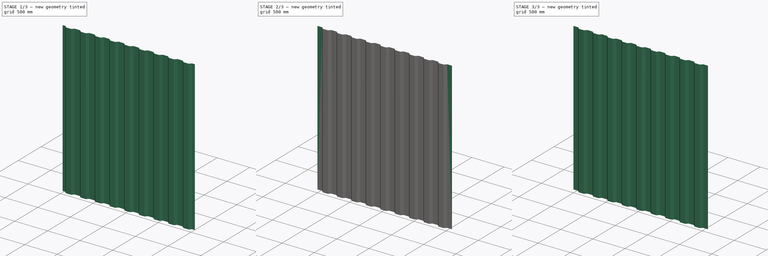
[diagram: build sequence overview — one tinted view per stage of 3, left to right]
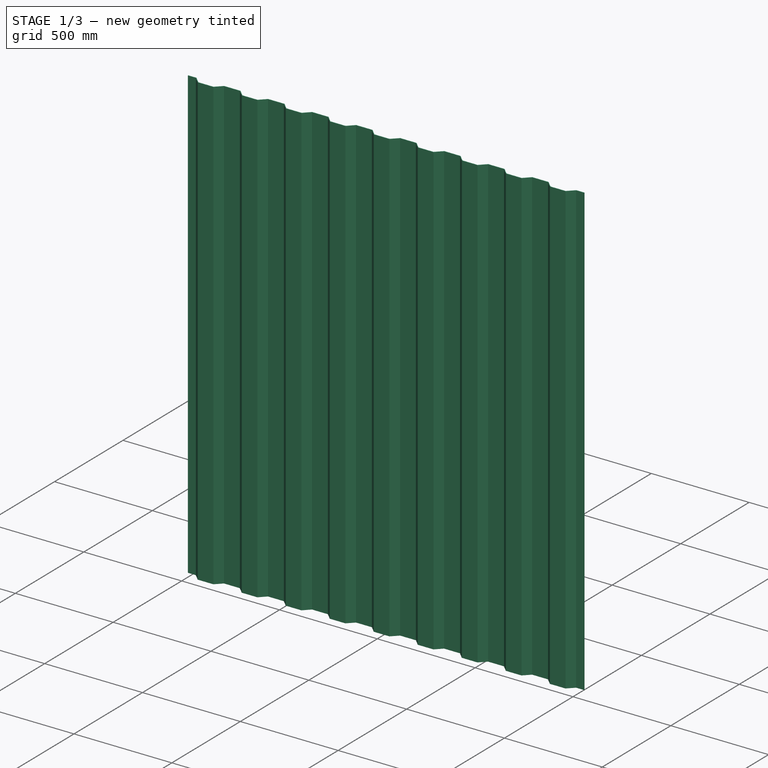
[diagram: stage 1 of 3 — iso view after this stage's code; geometry added in this stage tinted green]
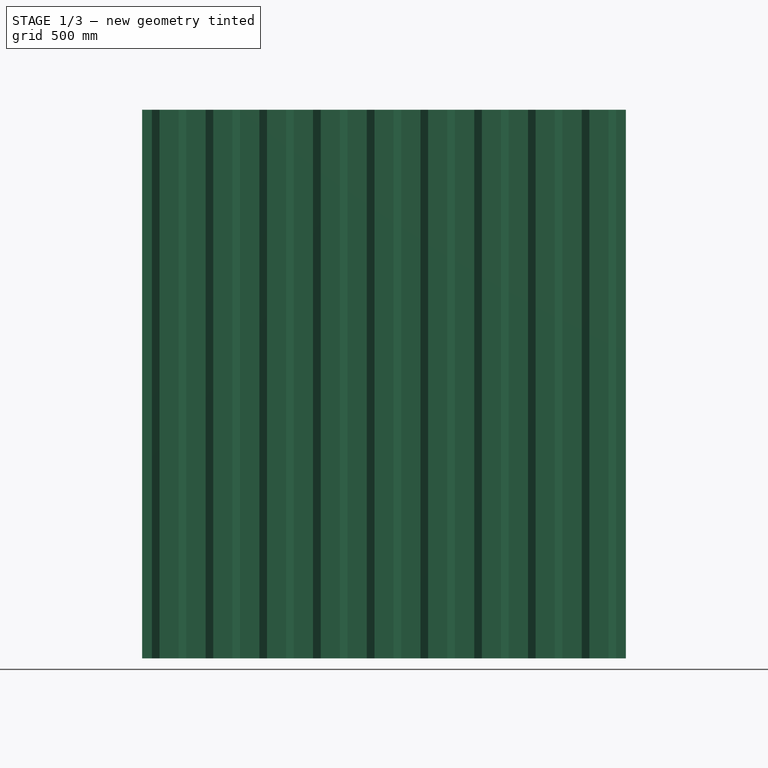
[diagram: stage 1 of 3 — front view after this stage's code; geometry added in this stage tinted green]
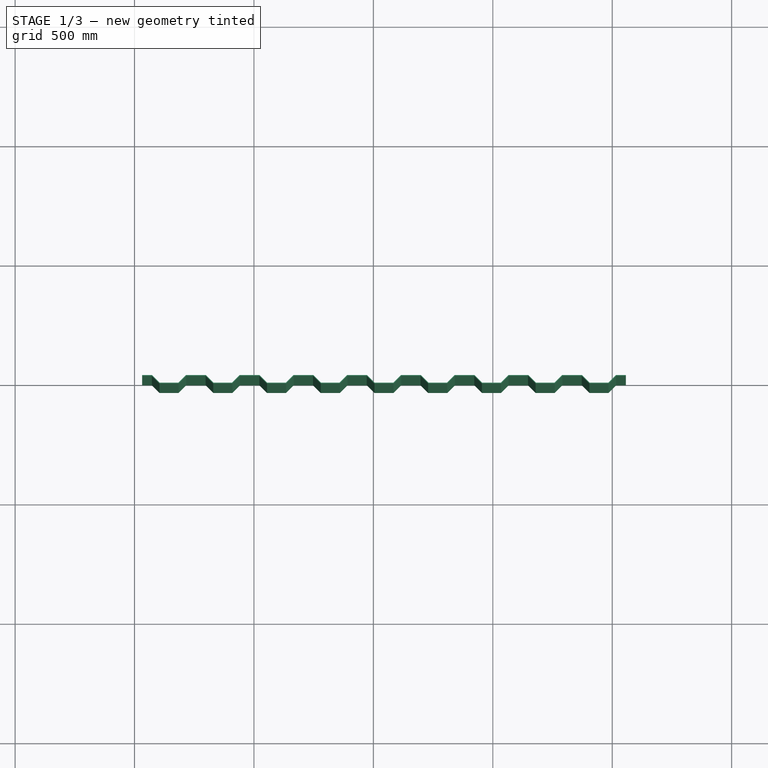
[diagram: stage 1 of 3 — top view after this stage's code; geometry added in this stage tinted green]
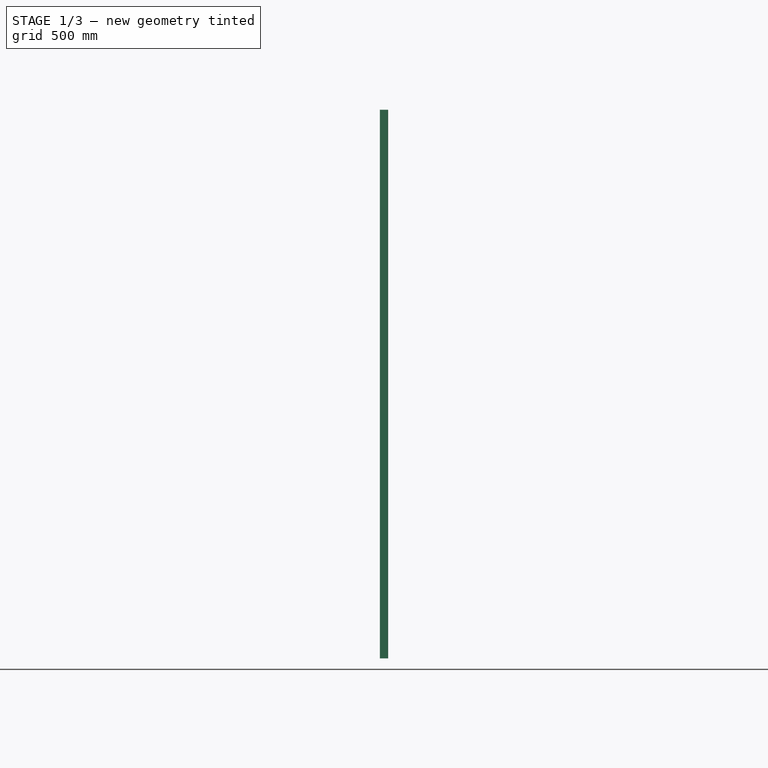
[diagram: stage 1 of 3 — right view after this stage's code; geometry added in this stage tinted green]
FCSTD DOCUMENT  (FreeCAD 0.18R4 (GitTag))
Label: wall_back
License: All rights reserved
LicenseURL: http://en.wikipedia.org/wiki/All_rights_reserved
objects: Sketcher::SketchObject×2, PartDesign::Pad×2, PartDesign::Fillet×2, PartDesign::LinearPattern×1, PartDesign::Body×1
note: 10 computed .brp shape members not serialized (recipe doc carries the construction recipe); baked Part::Feature solids carry a one-line shape summary decoded from their .brp

FEATURE [Sketcher::SketchObject] Sketch
  MapMode = 5
  Support = -> [XY_Plane]
  sketch-geometry (12):
    g0: LineSegment StartX=32 StartY=0 StartZ=0 EndX=72.5 EndY=0 EndZ=0
    g1: LineSegment StartX=72.5 StartY=0 StartZ=0 EndX=104.5 EndY=-32 EndZ=0
    g2: LineSegment StartX=104.5 StartY=-32 StartZ=0 EndX=184.5 EndY=-32 EndZ=0
    g3: LineSegment StartX=184.5 StartY=-32 StartZ=0 EndX=216.5 EndY=0 EndZ=0
    g4: LineSegment StartX=216.5 StartY=0 StartZ=0 EndX=257 EndY=0 EndZ=0
    g5: LineSegment StartX=32 StartY=3 StartZ=0 EndX=73.7426 EndY=3 EndZ=0
    g6: LineSegment StartX=73.7426 StartY=3 StartZ=0 EndX=105.743 EndY=-29 EndZ=0
    g7: LineSegment StartX=105.743 StartY=-29 StartZ=0 EndX=183.257 EndY=-29 EndZ=0
    g8: LineSegment StartX=183.257 StartY=-29 StartZ=0 EndX=215.257 EndY=3 EndZ=0
    g9: LineSegment StartX=215.257 StartY=3 StartZ=0 EndX=257 EndY=3 EndZ=0
    g10: LineSegment StartX=257 StartY=0 StartZ=0 EndX=257 EndY=3 EndZ=0
    g11: LineSegment StartX=32 StartY=0 StartZ=0 EndX=32 EndY=3 EndZ=0
  constraints (36):
    c: Horizontal(g0)
    c: Coincident(g1,g0)
    c: Coincident(g2,g1)
    c: Horizontal(g2)
    c: Coincident(g3,g2)
    c: PointOnObject(g3,g-1)
    c: Coincident(g4,g3)
    c: Horizontal(g4)
    c: Angle(g0,g1) = 2.35619
    c: Angle(g3,g4) = 2.35619
    c: DistanceX(g4,g4) = 40.5
    c: DistanceX(g2,g2) = 80
    c: DistanceY(g2,g4) = 32
    c: DistanceX(g0,g0) = 40.5
    c: PointOnObject(g0,g-1)
    c: DistanceX(g-1,g0) = 72.5
    c: Horizontal(g5)
    c: Coincident(g6,g5)
    c: Coincident(g7,g6)
    c: Horizontal(g7)
    c: Coincident(g8,g7)
    c: Coincident(g9,g8)
    c: Horizontal(g9)
    c: Coincident(g10,g4)
    c: Vertical(g10)
    c: Coincident(g9,g10)
    c: Coincident(g11,g0)
    c: Vertical(g11)
    c: Coincident(g5,g11)
    c: DistanceY(g10,g10) = 3
    c: Parallel(g8,g3)
    c: Parallel(g6,g1)
    c: Distance(g5,g1) = 3
    c: Distance(g3,g8) = 3
    c: Distance(g6,g2) = 3
    c: Equal(g11,g10)
FEATURE [PartDesign::Pad] Pad
  Length = 2297
  Length2 = 100
  Profile = -> Sketch
  Refine = true
  Type = 0
FEATURE [PartDesign::LinearPattern] LinearPattern
  BaseFeature = -> Pad
  Direction = -> X_Axis
  Length = 1800
  Occurrences = 9
  Originals = -> [Pad]
  Refine = true
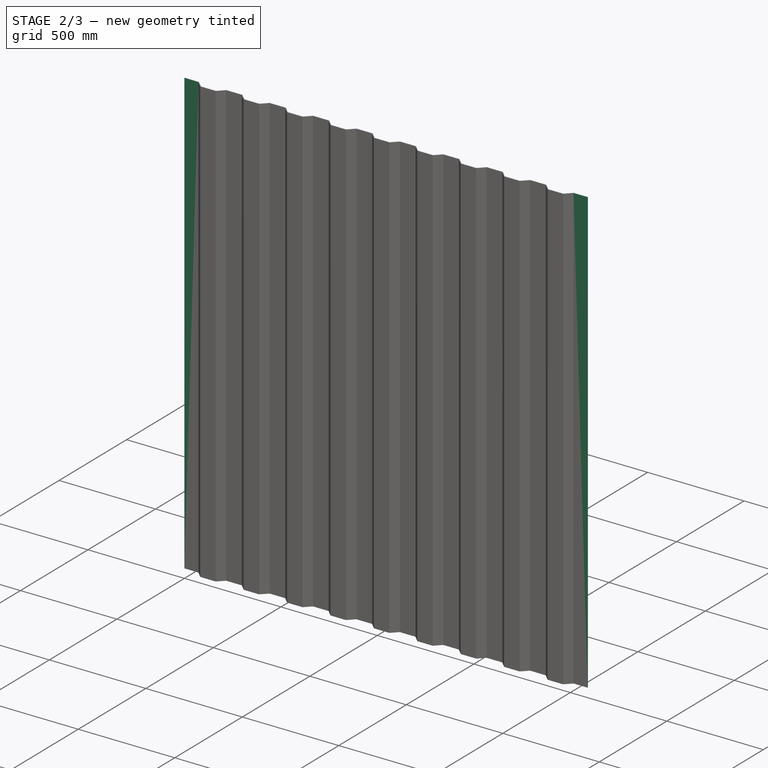
[diagram: stage 2 of 3 — iso view after this stage's code; geometry added in this stage tinted green]
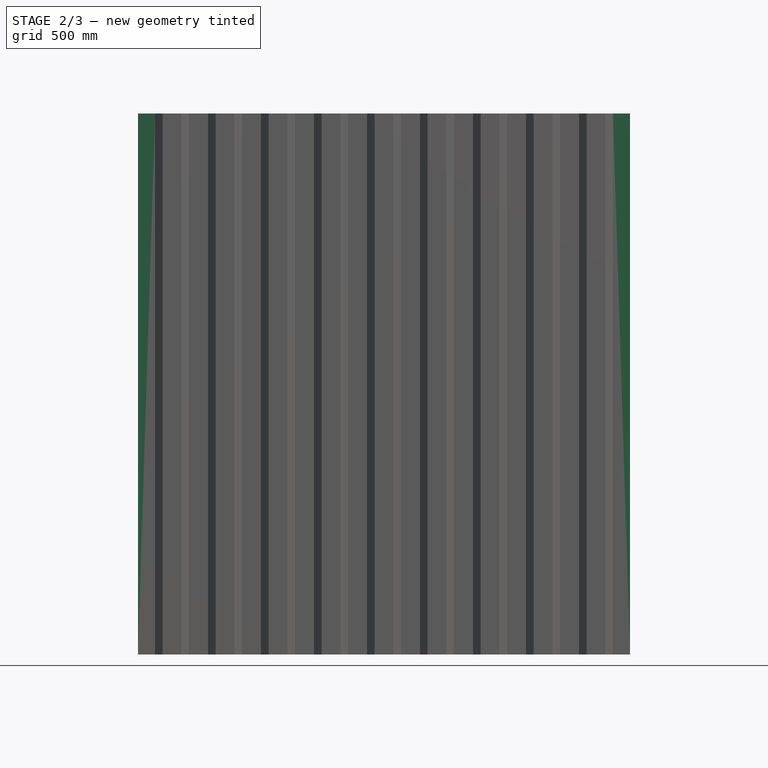
[diagram: stage 2 of 3 — front view after this stage's code; geometry added in this stage tinted green]
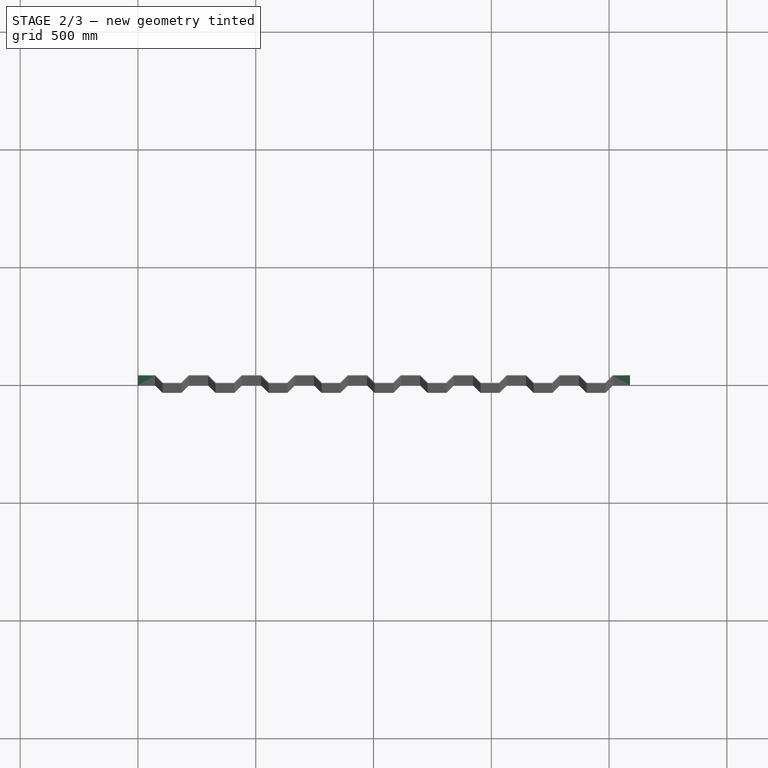
[diagram: stage 2 of 3 — top view after this stage's code; geometry added in this stage tinted green]
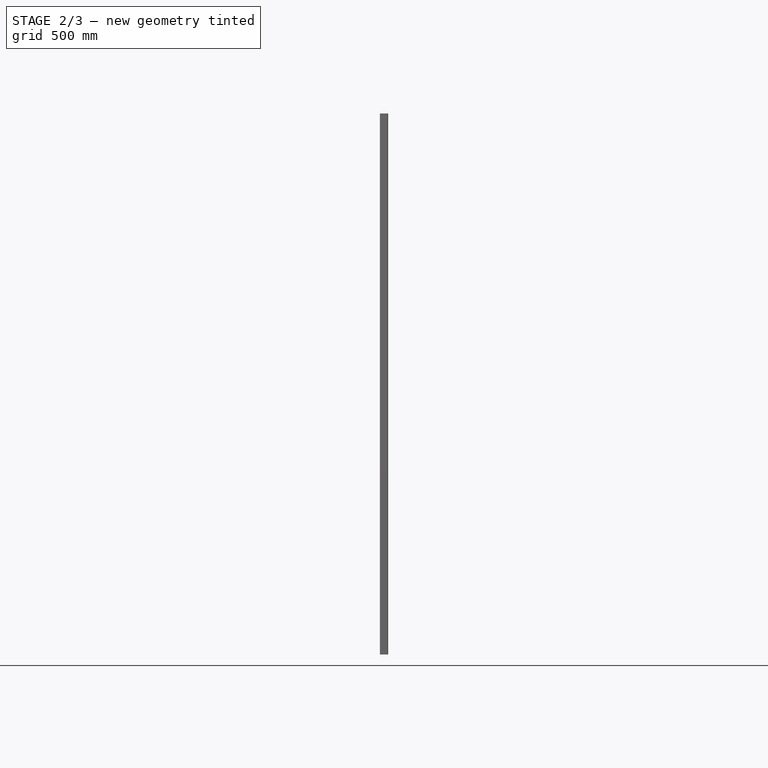
[diagram: stage 2 of 3 — right view after this stage's code; geometry added in this stage tinted green]
FEATURE [Sketcher::SketchObject] Sketch001
  ExternalGeometry = -> [LinearPattern]
  MapMode = 5
  Placement = pos=(0,0,2297) rot=(0,0,1;0rad)
  Support = -> [LinearPattern]
  sketch-geometry (8):
    g0: LineSegment StartX=72.5 StartY=0 StartZ=0 EndX=0 EndY=0 EndZ=0
    g1: LineSegment StartX=0 StartY=0 StartZ=0 EndX=0 EndY=3 EndZ=0
    g2: LineSegment StartX=0 StartY=3 StartZ=0 EndX=72.5 EndY=3 EndZ=0
    g3: LineSegment StartX=72.5 StartY=3 StartZ=0 EndX=72.5 EndY=0 EndZ=0
    g4: LineSegment StartX=2057 StartY=3 StartZ=0 EndX=2089 EndY=3 EndZ=0
    g5: LineSegment StartX=2089 StartY=3 StartZ=0 EndX=2089 EndY=0 EndZ=0
    g6: LineSegment StartX=2089 StartY=0 StartZ=0 EndX=2057 EndY=0 EndZ=0
    g7: LineSegment StartX=2057 StartY=0 StartZ=0 EndX=2057 EndY=3 EndZ=0
  constraints (22):
    c: Coincident(g0,g1)
    c: Coincident(g1,g2)
    c: Coincident(g2,g3)
    c: Coincident(g3,g0)
    c: Horizontal(g0)
    c: Horizontal(g2)
    c: Vertical(g1)
    c: Vertical(g3)
    c: Coincident(g0,g-4)
    c: PointOnObject(g1,g-2)
    c: PointOnObject(g-3,g2)
    c: Coincident(g4,g5)
    c: Coincident(g5,g6)
    c: Coincident(g6,g7)
    c: Coincident(g7,g4)
    c: Horizontal(g4)
    c: Horizontal(g6)
    c: Vertical(g5)
    c: Vertical(g7)
    c: Coincident(g4,g-5)
    c: PointOnObject(g6,g-6)
    c: DistanceX(g-6,g5) = 72.5
FEATURE [PartDesign::Pad] Pad001
  BaseFeature = -> LinearPattern
  Length = 2297
  Length2 = 100
  Profile = -> Sketch001
  Refine = true
  Reversed = true
  Type = 0
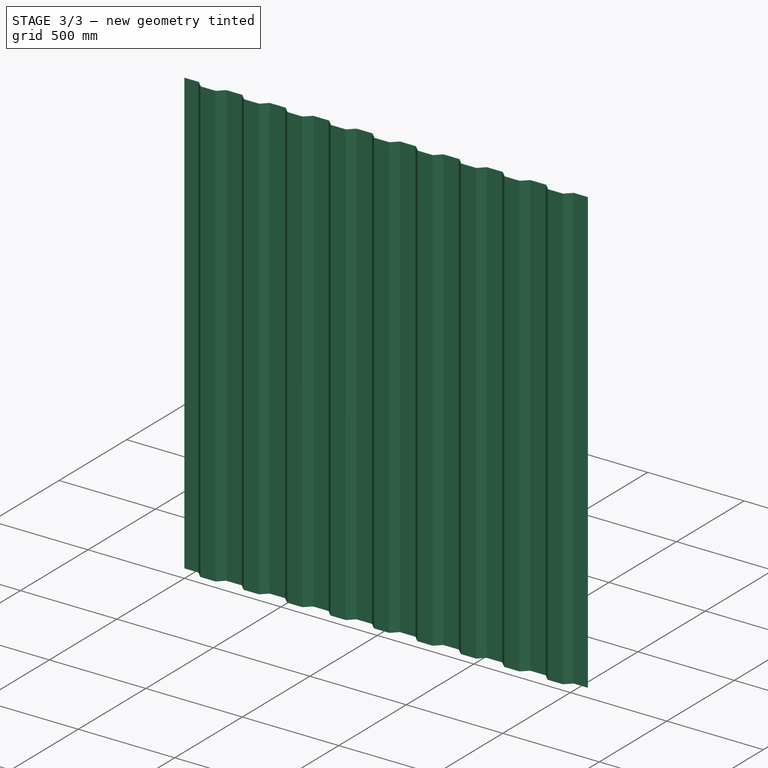
[diagram: stage 3 of 3 — iso view after this stage's code; geometry added in this stage tinted green]
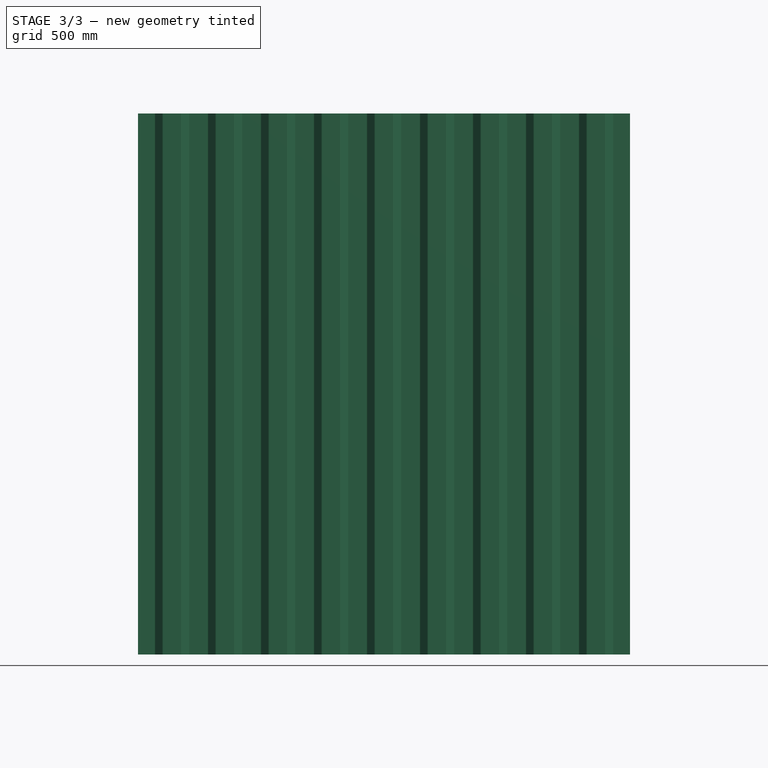
[diagram: stage 3 of 3 — front view after this stage's code; geometry added in this stage tinted green]
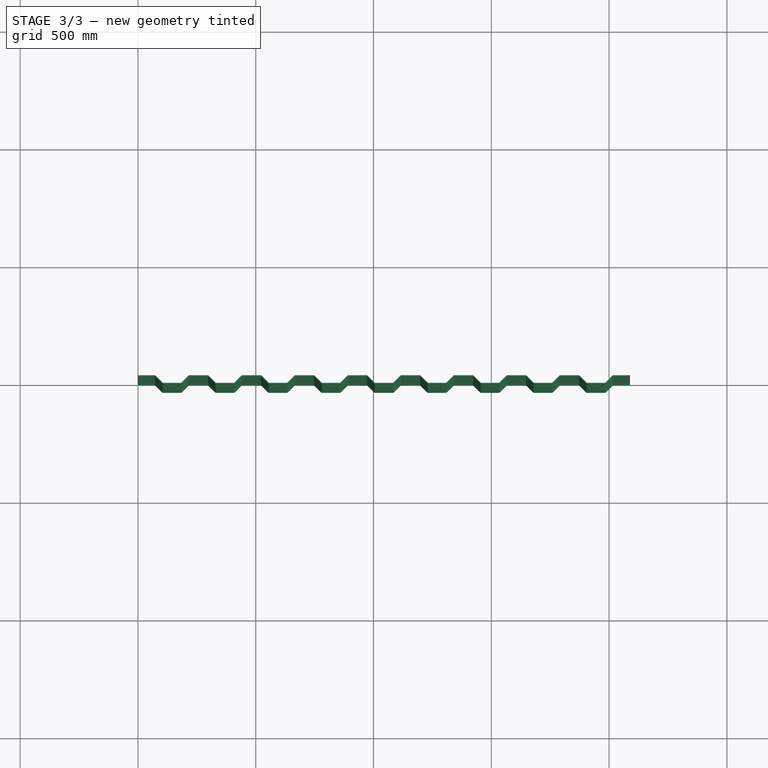
[diagram: stage 3 of 3 — top view after this stage's code; geometry added in this stage tinted green]
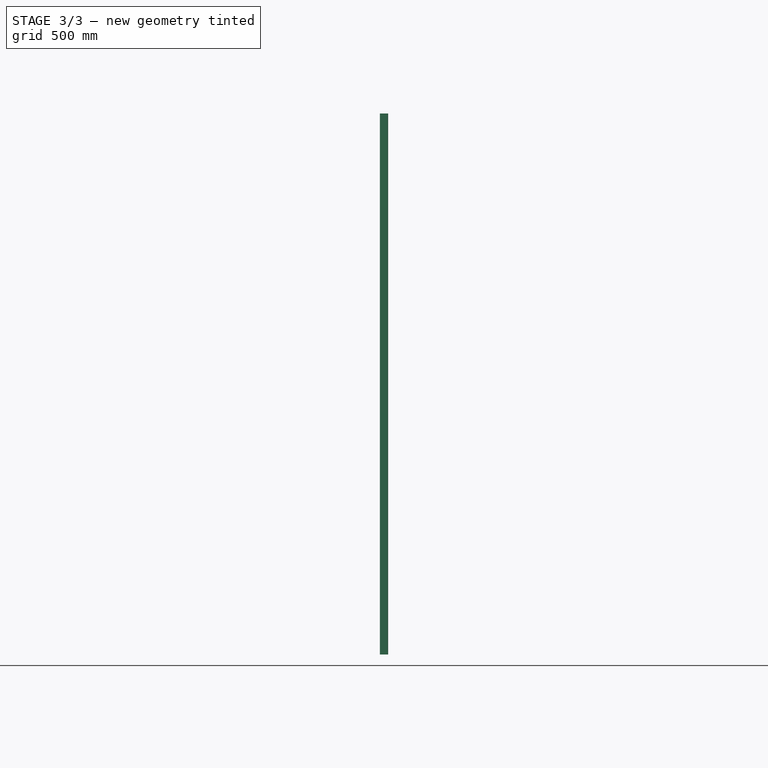
[diagram: stage 3 of 3 — right view after this stage's code; geometry added in this stage tinted green]
FEATURE [PartDesign::Fillet] Fillet
  Base = -> Pad001 [Edge1,Edge8,Edge12,Edge20,Edge24,Edge32,Edge36,Edge44,Edge48,Edge56,Edge60,Edge68,Edge72,Edge80,Edge84,Edge92,Edge96,Edge104,Edge156,Edge159,Edge165,Edge167,Edge173,Edge175,Edge181,Edge183,Edge189,Edge191,Edge197,Edge199,Edge205,Edge207,Edge215,Edge213,Edge223,Edge221]
  BaseFeature = -> Pad001
  Radius = 3
FEATURE [PartDesign::Fillet] Fillet001
  Base = -> Fillet [Edge231,Edge240,Edge242,Edge252,Edge254,Edge264,Edge266,Edge276,Edge278,Edge288,Edge290,Edge300,Edge302,Edge312,Edge314,Edge324,Edge326,Edge336,Edge325,Edge327,Edge315,Edge313,Edge303,Edge301,Edge291,Edge289,Edge279,Edge277,Edge267,Edge265,Edge255,Edge253,Edge243,Edge241,Edge118,Edge3]
  BaseFeature = -> Fillet
  Radius = 6
FEATURE [PartDesign::Body] Body
  Group = -> [Sketch,Pad,LinearPattern,Sketch001,Pad001,Fillet,Fillet001]
  Origin = -> Origin
  Tip = -> Fillet001
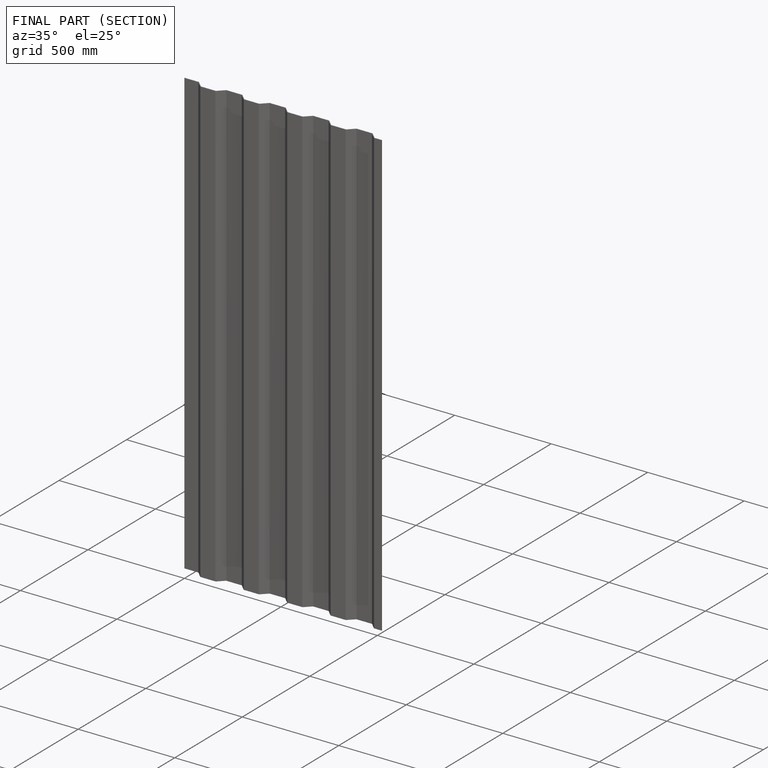
[diagram: finished part — half-section view (interior)]
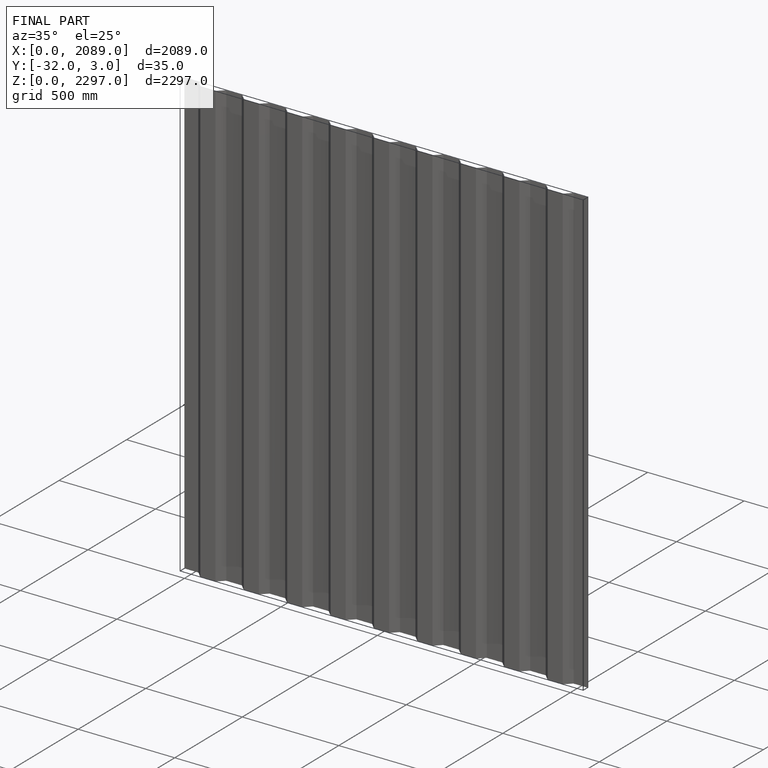
[diagram: finished part — iso view with bounding-box wireframe]
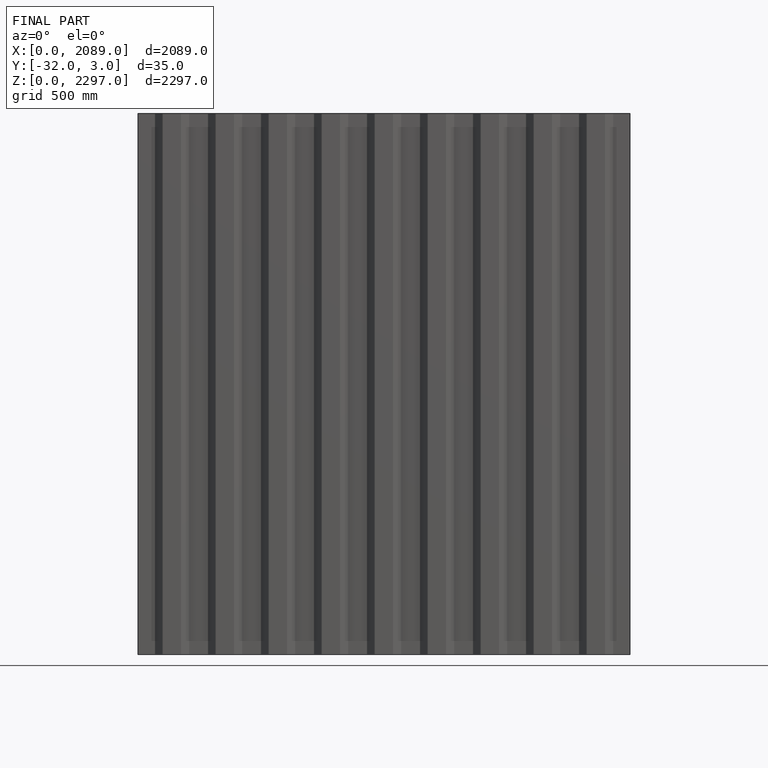
[diagram: finished part — front view with bounding-box wireframe]
